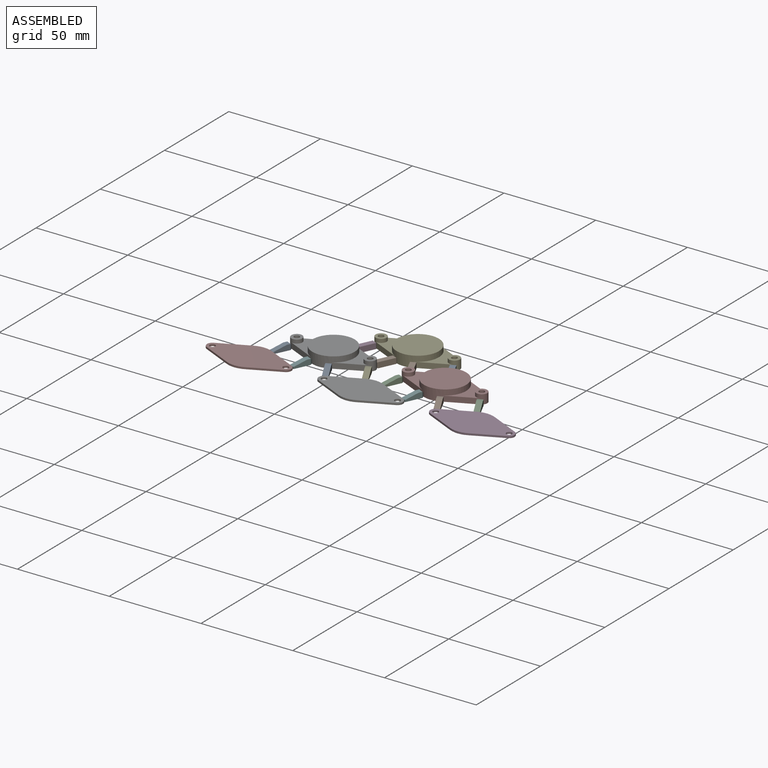
[diagram: assembled view]
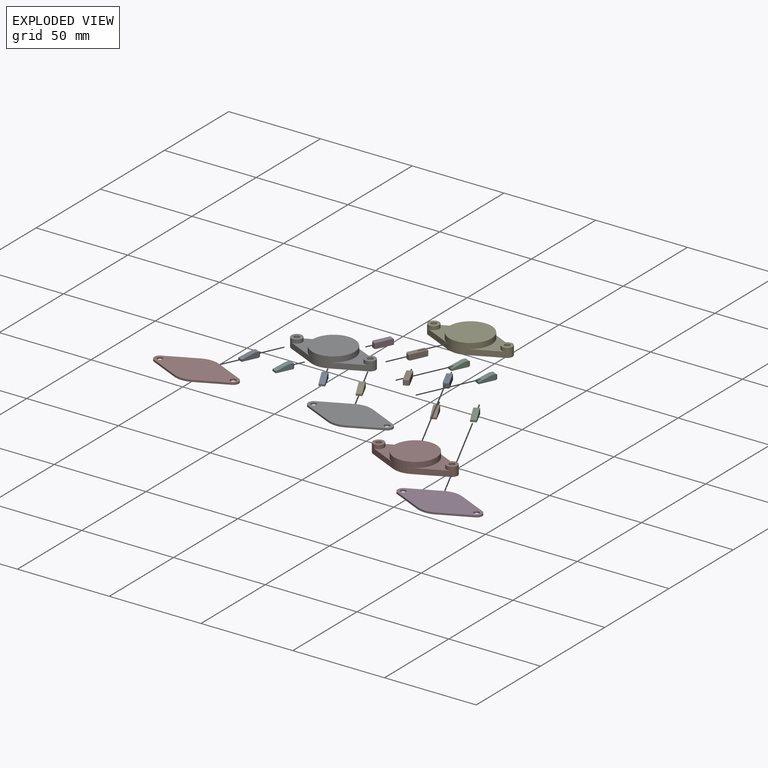
[diagram: exploded view]
GUIDED TOUR — MATED ASSEMBLY (Onshape document 7ce95cc0ff4ac9dc0271fdcf, AutoMate assembly 7ce95cc0ff4ac9dc0271fdcf_554a8d9334748388f44639b5_546659d703ddb0005e735c72_default)

This assembly has 18 components, labeled P0..P17 below (a component is one placed occurrence of a part; the same part can appear more than once), held together by 17 mates. A mate is a constraint between two components; its type names the relative motion it leaves free:
  FASTENED — locks the two components together rigidly (no relative motion).
Axis/direction vectors are unit vectors and 'through' points are millimeter coordinates, both in the assembly's world frame.

MATES
  1. FASTENED "Fastened 8": P0 <-> P14, direction (-0.425, 0.905, 0.000) through (-54.29, -1.36, 0.00) mm
  2. FASTENED "Fastened 14": P1 <-> P3, direction (0.425, -0.905, 0.000) through (10.79, -10.41, 0.00) mm
  3. FASTENED "Fastened 10": P12 <-> P14, direction (-0.425, 0.905, 0.000) through (-37.90, 6.33, 0.00) mm
  4. FASTENED "Fastened 5": P16 <-> P14, direction (0.425, 0.905, 0.000) through (-80.45, 6.33, 0.00) mm
  5. FASTENED "Fastened 6": P16 <-> P7, direction (-0.425, -0.905, 0.000) through (-84.70, -2.72, 0.00) mm
  6. FASTENED "Fastened 2": P8 <-> P4, direction (-0.425, 0.905, 0.000) through (-7.49, 28.51, 0.00) mm
  7. FASTENED "Fastened 1": P8 <-> P15, direction (0.425, -0.905, 0.000) through (-3.24, 19.46, 0.00) mm
  8. FASTENED "Fastened 4": P11 <-> P4, direction (0.425, 0.905, 0.000) through (-50.04, 28.51, 0.00) mm
  9. FASTENED "Fastened 7": P13 <-> P14, direction (0.425, 0.905, 0.000) through (-64.06, -1.36, 0.00) mm
  10. FASTENED "Fastened 11": P10 <-> P15, direction (0.425, 0.905, 0.000) through (-19.63, 6.33, 0.00) mm
  11. FASTENED "Fastened 13": P1 <-> P15, direction (-0.425, 0.905, 0.000) through (6.54, -1.36, 0.00) mm
  12. FASTENED "Fastened 15": P2 <-> P15, direction (-0.425, 0.905, 0.000) through (22.92, 6.33, 0.00) mm
  13. FASTENED "Fastened 12": P5 <-> P15, direction (0.425, 0.905, 0.000) through (-3.24, -1.36, 0.00) mm
  14. FASTENED "Fastened 16": P9 <-> P4, direction (0.425, 0.905, 0.000) through (-33.65, 20.81, 0.00) mm
  15. FASTENED "Fastened 17": P17 <-> P4, direction (-0.425, 0.905, 0.000) through (-23.88, 20.81, 0.00) mm
  16. FASTENED "Fastened 9": P0 <-> P6, direction (0.425, -0.905, 0.000) through (-50.04, -10.41, 0.00) mm
  17. FASTENED "Fastened 3": P11 <-> P14, direction (-0.425, -0.905, 0.000) through (-54.29, 19.46, 0.00) mm

ASSEMBLY ORDER
  1. P17 — the base component [order verified]
  2. P9 [order verified]
  3. P8 [order verified]
  4. P11 [order verified]
  5. P12 [order verified]
  6. P0 [order verified]
  7. P10 [order verified]
  8. P14 [order verified]
  9. P4 [order verified]
  10. P5 [order verified]
  11. P13 [order verified]
  12. P15 [order verified]
  13. P6 [order verified]
  14. P1 [order verified]
  15. P16 [order verified]
  16. P2 [order verified]
  17. P7 [order verified]
  18. P3 [order verified]
Order-tag legend:
  [order verified] — this step's position reverses a verified removal order: the component was checked to insert without passing through the ones already placed.

Of the 18 components, 15 carry the full construction recipe — the FeatureScript program that regenerates the part's solid from scratch; the rest are supplied as boundary geometry only.
Because this assembly has more than 12 components, the tour below covers the 12 most significant ones individually (every recipe-attached component first, then the largest by part volume), in assembly order; the remaining 6 are summarized together in a grouped section at the end.
Each toured component is shown spotlighted twice — in the assembled view, then in the exploded view, where a leader line traces a displaced component back to its assembled socket (saturated green if recipe-attached, orange if geometry-only; every other component desaturated gray) — followed by its recipe or geometry summary and the mates that hold it.
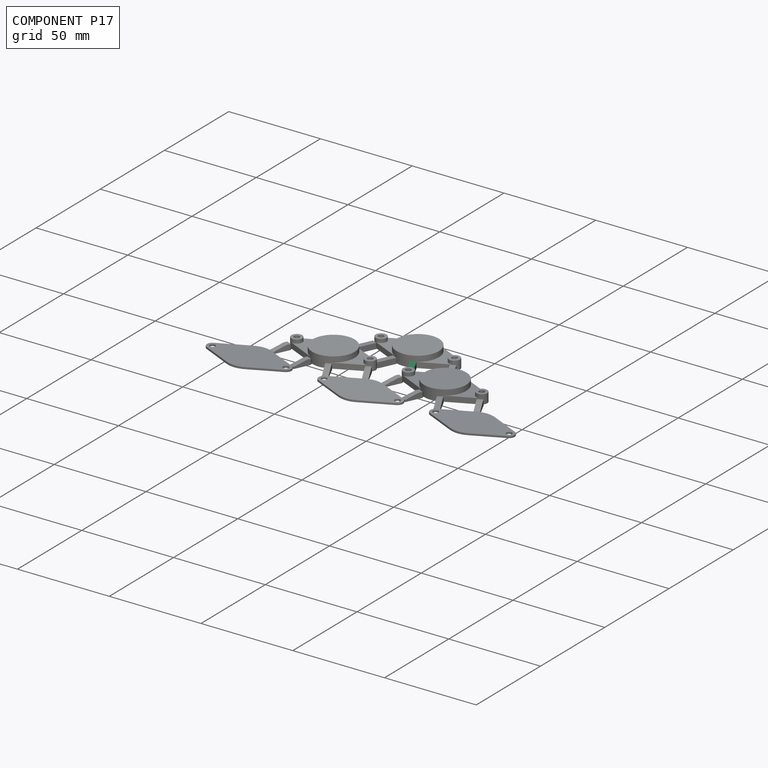
[diagram: component P17 — assembled]
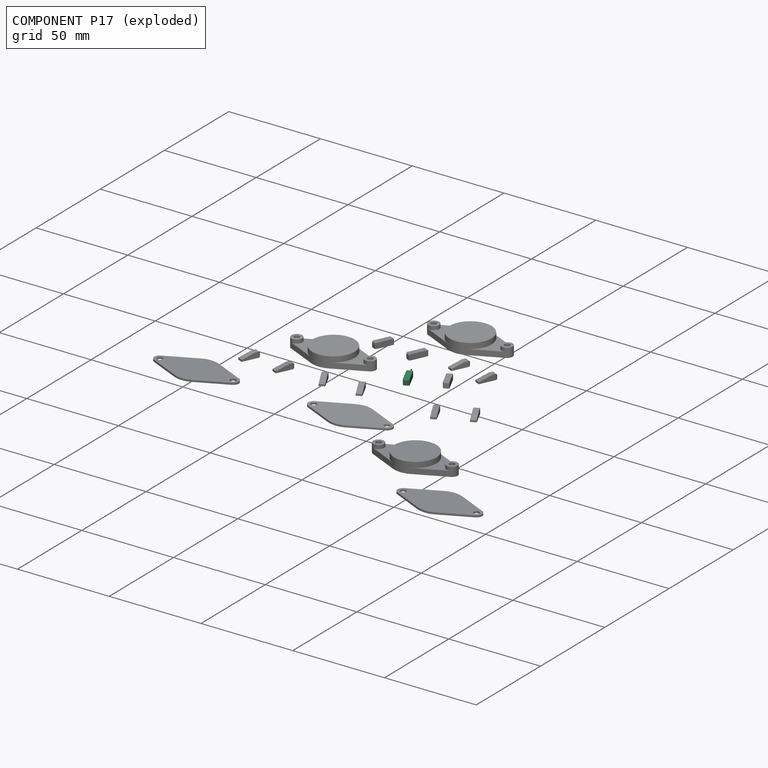
[diagram: component P17 — exploded]
COMPONENT P17 — same part as P8 (CADFS 00129856); its construction recipe is shown at P8.
Held by: FASTENED mate "Fastened 17" to P4.
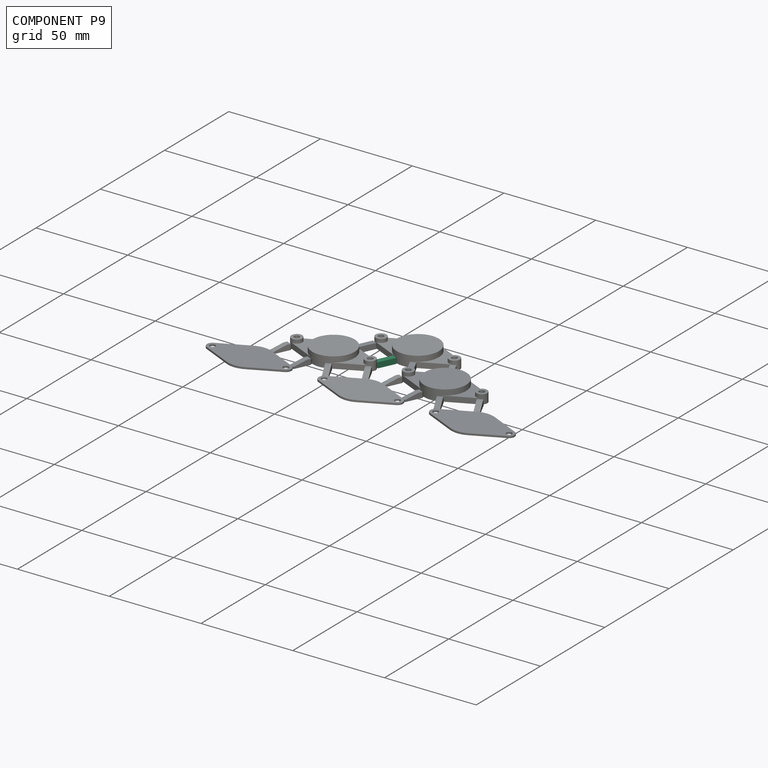
[diagram: component P9 — assembled]
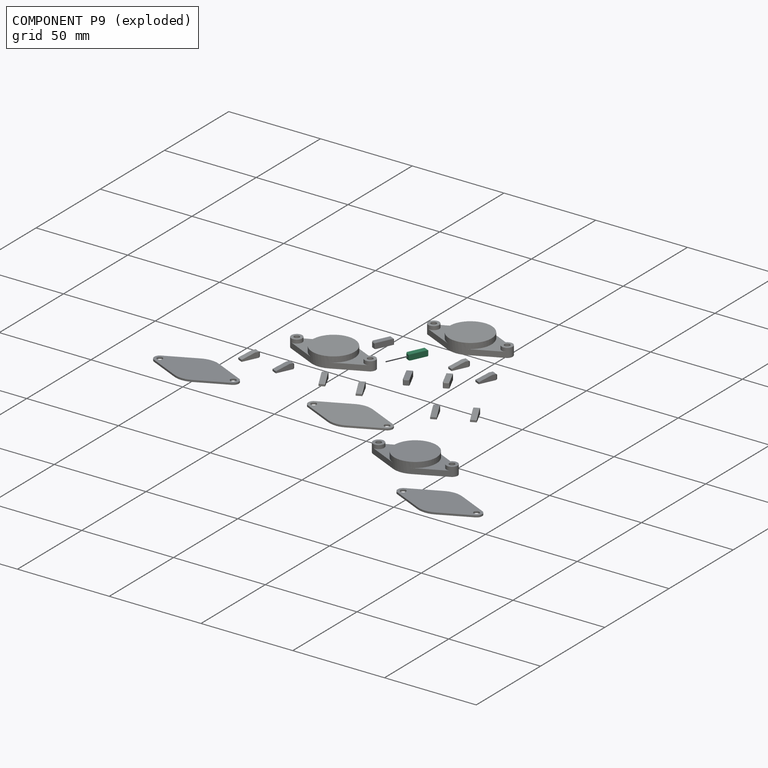
[diagram: component P9 — exploded]
COMPONENT P9 — same part as P8 (CADFS 00129856); its construction recipe is shown at P8.
Held by: FASTENED mate "Fastened 16" to P4.
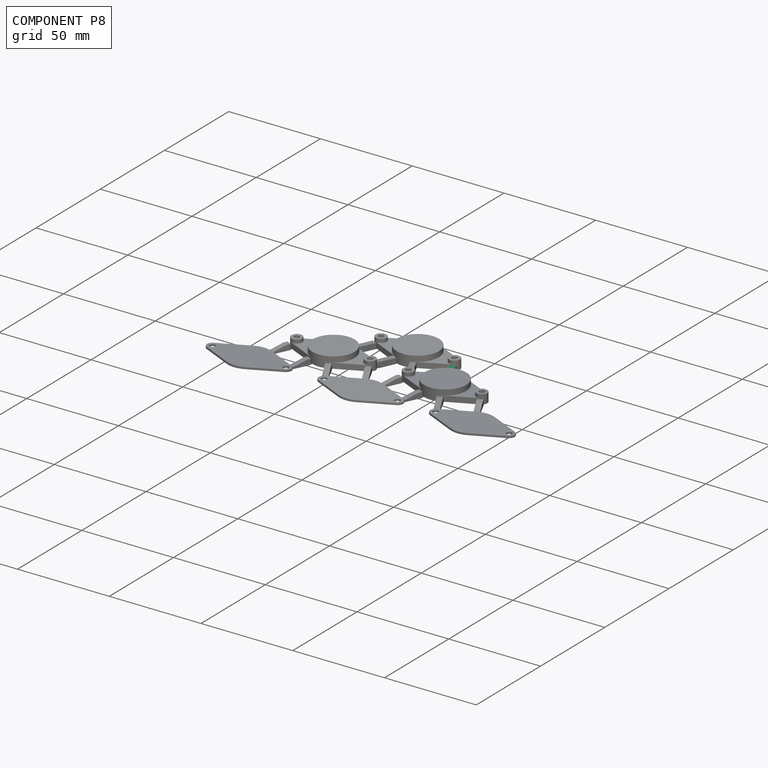
[diagram: component P8 — assembled]
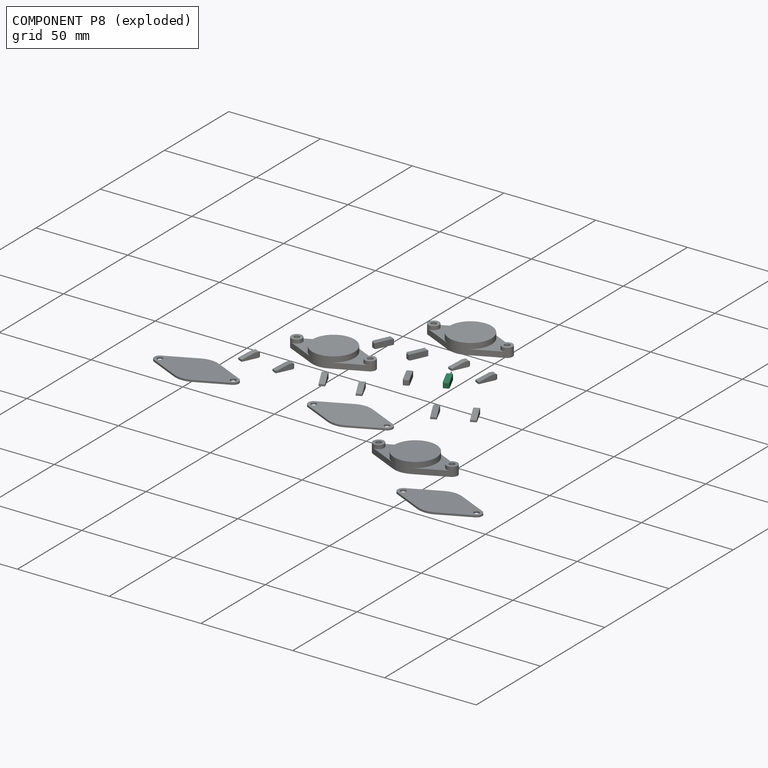
[diagram: component P8 — exploded]
COMPONENT P8 — recipe-attached (CADFS 00129856, mesh-verified: the recipe's output STEP matches this component's geometry to below the mesh-comparison resolution (tessellation chordal tolerance ~0.0163 mm)).
Held by: FASTENED mate "Fastened 2" to P4; FASTENED mate "Fastened 1" to P15.
Construction recipe (FeatureScript — the CAD program that rebuilds this solid; sketch coordinates are in the units given by the * unit suffixes, e.g. mm):

FeatureScript 1511;
import(path : "onshape/std/geometry.fs", version : "1511.0");
import(path : "onshape/std/common.fs", version : "1511.0");
const mm = millimeter;
const VERTEX = EntityType.VERTEX;
const EDGE = EntityType.EDGE;
const FACE = EntityType.FACE;
const BODY = EntityType.BODY;
function v(x, y){return vector(x, y);}
function OD(order){return orderDisambiguation(order);}
function OSD(set){return originalSetDisambiguation(set);}
function TD(topology){return topologyDisambiguation(topology);}
function TDD(query){return trueDependencyDisambiguation(query);}
function sQuery(a, b, c) {return sketchEntityQuery(a, b, c);}

annotation { "Feature Type Name" : "Feature", "Feature Type Description" : "" }
export const myFeature = defineFeature(function(context is Context, id is Id, definition is map)
    precondition{}
    {
        {
            var Q0;
            Q0=qCreatedBy(makeId("Top.planeOp"),FACE);
            var sketch = newSketch(context, id + "F0", { "sketchPlane" : qUnion([Q0])});
            skLineSegment(sketch, "E0.bottom", {"start": v(5, -1.5) * mm, "end": v(-5, -1.5) * mm});
            skLineSegment(sketch, "E0.top", {"start": v(5, 1.5) * mm, "end": v(-5, 1.5) * mm});
            skLineSegment(sketch, "E0.left", {"start": v(5, -1.5) * mm, "end": v(5, 1.5) * mm});
            skLineSegment(sketch, "E0.right", {"start": v(-5, -1.5) * mm, "end": v(-5, 1.5) * mm});
            skPoint(sketch, "E0.middle", {"position": v(0, 0) * mm});
            skSolve(sketch);
        }
        {
            var Q0;
            Q0 = qSketchRegion(id + "F0", true);
            var Q1;
            Q1=makeQuery(id+"F0.imprint","IMPRINT",FACE,{"disambiguationData":[TD([[makeQuery(id+"F0.imprint","IMPRINT",EDGE,{"derivedFrom":sQuery(id+"F0.wireOp",EDGE,"E0.bottom")}),-1.0]])]});
            extrude(context, id + "F1", {"entities" : qUnion([Q0, Q1]), "depth" : 3 * mm});
        }
        {
            var Q0;
            Q0=makeQuery(id+"F1.opExtrude","CAP_EDGE",EDGE,{"disambiguationData":[OSD([sQuery(id+"F0.wireOp",EDGE,"E0.right")])],"isStart":false});
            var Q1;
            Q1=makeQuery(id+"F1.opExtrude","CAP_EDGE",EDGE,{"disambiguationData":[OSD([sQuery(id+"F0.wireOp",EDGE,"E0.left")])],"isStart":false});
            chamfer(context, id + "F2", {"entities" : qUnion([Q0, Q1]), "width" : 0.4 * mm, "tangentPropagation" : true});
        }
        {
            var Q0;
            Q0=makeQuery(id+"F1.opExtrude","SWEPT_EDGE",EDGE,{"disambiguationData":[OSD([sQuery(id+"F0.wireOp",EDGE,"E0.bottom"),sQuery(id+"F0.wireOp",EDGE,"E0.left")])]});
            var Q1;
            Q1=makeQuery(id+"F1.opExtrude","SWEPT_EDGE",EDGE,{"disambiguationData":[OSD([sQuery(id+"F0.wireOp",EDGE,"E0.top"),sQuery(id+"F0.wireOp",EDGE,"E0.left")])]});
            var Q2;
            Q2=makeQuery(id+"F1.opExtrude","SWEPT_EDGE",EDGE,{"disambiguationData":[OSD([sQuery(id+"F0.wireOp",EDGE,"E0.bottom"),sQuery(id+"F0.wireOp",EDGE,"E0.right")])]});
            var Q3;
            Q3=makeQuery(id+"F1.opExtrude","SWEPT_EDGE",EDGE,{"disambiguationData":[OSD([sQuery(id+"F0.wireOp",EDGE,"E0.top"),sQuery(id+"F0.wireOp",EDGE,"E0.right")])]});
            chamfer(context, id + "F3", {"entities" : qUnion([Q0, Q1, Q2, Q3]), "width" : 0.4 * mm, "tangentPropagation" : true});
        }
    });
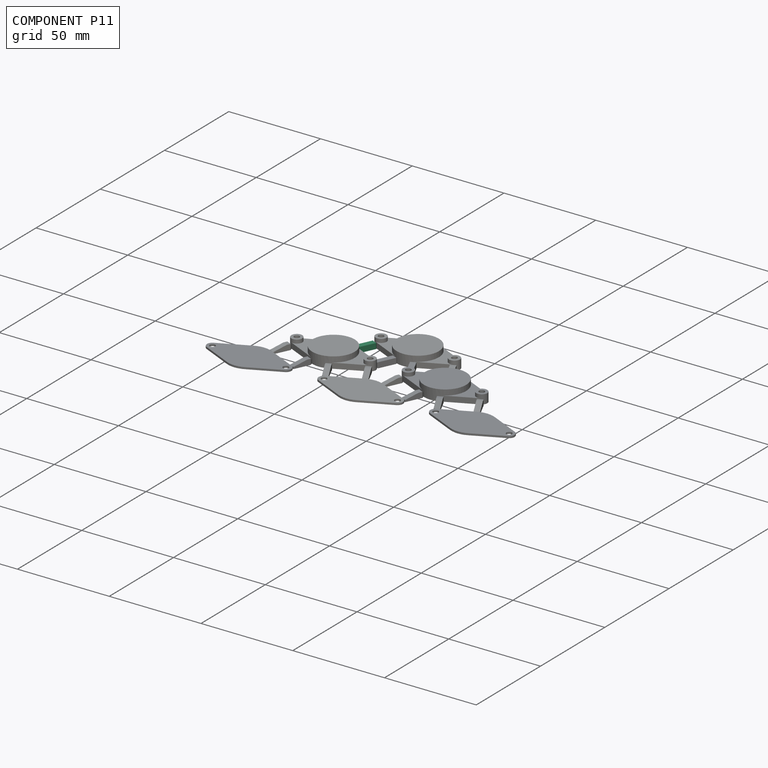
[diagram: component P11 — assembled]
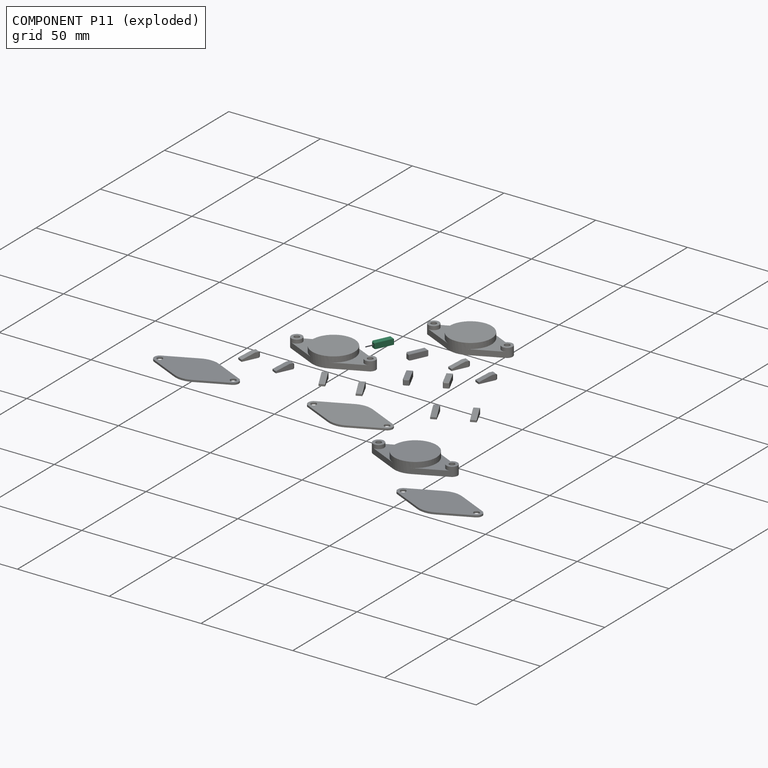
[diagram: component P11 — exploded]
COMPONENT P11 — same part as P8 (CADFS 00129856); its construction recipe is shown at P8.
Held by: FASTENED mate "Fastened 4" to P4; FASTENED mate "Fastened 3" to P14.
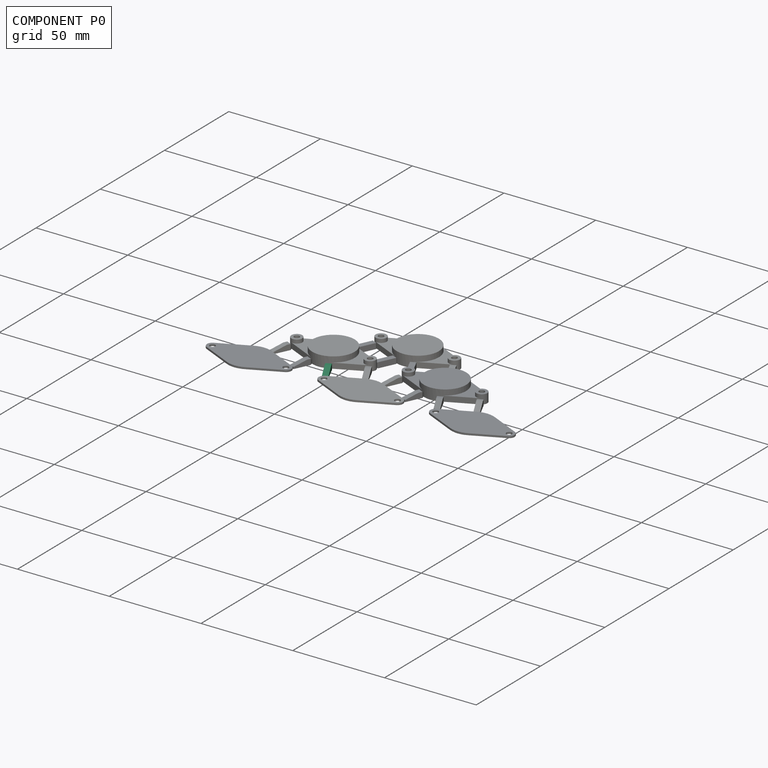
[diagram: component P0 — assembled]
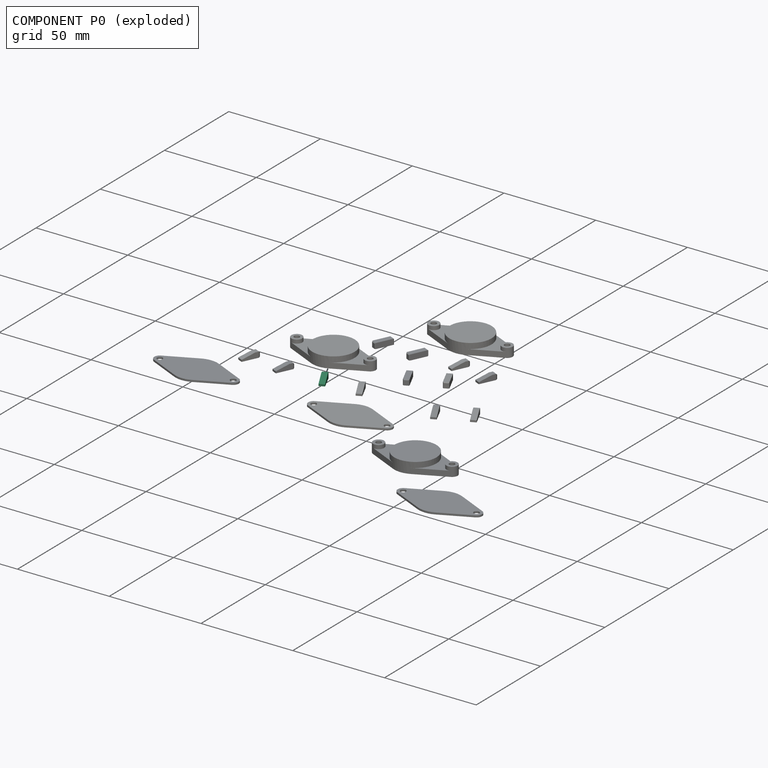
[diagram: component P0 — exploded]
COMPONENT P0 — recipe-attached (CADFS 00129857, mesh-verified: the recipe's output STEP matches this component's geometry to below the mesh-comparison resolution (tessellation chordal tolerance ~0.0163 mm)).
Held by: FASTENED mate "Fastened 8" to P14; FASTENED mate "Fastened 9" to P6.
Construction recipe (FeatureScript — the CAD program that rebuilds this solid; sketch coordinates are in the units given by the * unit suffixes, e.g. mm):

FeatureScript 1511;
import(path : "onshape/std/geometry.fs", version : "1511.0");
import(path : "onshape/std/common.fs", version : "1511.0");
const mm = millimeter;
const VERTEX = EntityType.VERTEX;
const EDGE = EntityType.EDGE;
const FACE = EntityType.FACE;
const BODY = EntityType.BODY;
function v(x, y){return vector(x, y);}
function OD(order){return orderDisambiguation(order);}
function OSD(set){return originalSetDisambiguation(set);}
function TD(topology){return topologyDisambiguation(topology);}
function TDD(query){return trueDependencyDisambiguation(query);}
function sQuery(a, b, c) {return sketchEntityQuery(a, b, c);}

annotation { "Feature Type Name" : "Feature", "Feature Type Description" : "" }
export const myFeature = defineFeature(function(context is Context, id is Id, definition is map)
    precondition{}
    {
        {
            var Q0;
            Q0=qCreatedBy(makeId("Top.planeOp"),FACE);
            var sketch = newSketch(context, id + "F0", { "sketchPlane" : qUnion([Q0])});
            skLineSegment(sketch, "E0.bottom", {"start": v(5, -1.5) * mm, "end": v(-5, -1.5) * mm});
            skLineSegment(sketch, "E0.top", {"start": v(5, 1.5) * mm, "end": v(-5, 1.5) * mm});
            skLineSegment(sketch, "E0.left", {"start": v(5, -1.5) * mm, "end": v(5, 1.5) * mm});
            skLineSegment(sketch, "E0.right", {"start": v(-5, -1.5) * mm, "end": v(-5, 1.5) * mm});
            skPoint(sketch, "E0.middle", {"position": v(0, 0) * mm});
            skSolve(sketch);
        }
        {
            var Q0;
            Q0=qSketchRegion(id+"F0",true);
            var Q1;
            Q1=makeQuery(id+"F0.imprint","IMPRINT",FACE,{"disambiguationData":[TD([[makeQuery(id+"F0.imprint","IMPRINT",EDGE,{"derivedFrom":sQuery(id+"F0.wireOp",EDGE,"E0.bottom")}),-1.0]])]});
            extrude(context, id + "F1", {"entities" : qUnion([Q0, Q1]), "depth" : 3 * mm});
        }
        {
            var Q0;
            Q0=makeQuery(id+"F1.opExtrude","SWEPT_FACE",FACE,{"disambiguationData":[OSD([sQuery(id+"F0.wireOp",EDGE,"E0.bottom")])]});
            var sketch = newSketch(context, id + "F2", { "sketchPlane" : qUnion([Q0])});
            skPoint(sketch, "E1", {"position": v(-5, 1) * mm});
            skPoint(sketch, "E2", {"position": v(2, 3) * mm});
            skLineSegment(sketch, "E3", {"start": v(-5, 1) * mm, "end": v(2, 3) * mm});
            skLineSegment(sketch, "E4", {"start": v(-5, 1) * mm, "end": v(-5, 3) * mm});
            skLineSegment(sketch, "E5", {"start": v(-5, 3) * mm, "end": v(2, 3) * mm});
            skSolve(sketch);
        }
        {
            var Q0;
            Q0 = qSketchRegion(id + "F2", true);
            extrude(context, id + "F3", {"entities" : qUnion([Q0]), "operationType" : NewBodyOperationType.REMOVE, "oppositeDirection" : true, "depth" : 25 * mm});
        }
        {
            var Q0;
            Q0=makeQuery(id+"F1.opExtrude","CAP_EDGE",EDGE,{"disambiguationData":[OSD([sQuery(id+"F0.wireOp",EDGE,"E0.left")])],"isStart":false});
            var Q1;
            Q1=makeQuery(id+"F1.opExtrude","SWEPT_EDGE",EDGE,{"disambiguationData":[OSD([sQuery(id+"F0.wireOp",EDGE,"E0.bottom"),sQuery(id+"F0.wireOp",EDGE,"E0.left")])]});
            var Q2;
            Q2=makeQuery(id+"F1.opExtrude","SWEPT_EDGE",EDGE,{"disambiguationData":[OSD([sQuery(id+"F0.wireOp",EDGE,"E0.top"),sQuery(id+"F0.wireOp",EDGE,"E0.left")])]});
            chamfer(context, id + "F4", {"entities" : qUnion([Q0, Q1, Q2]), "width" : 1 * mm, "tangentPropagation" : true});
        }
    });
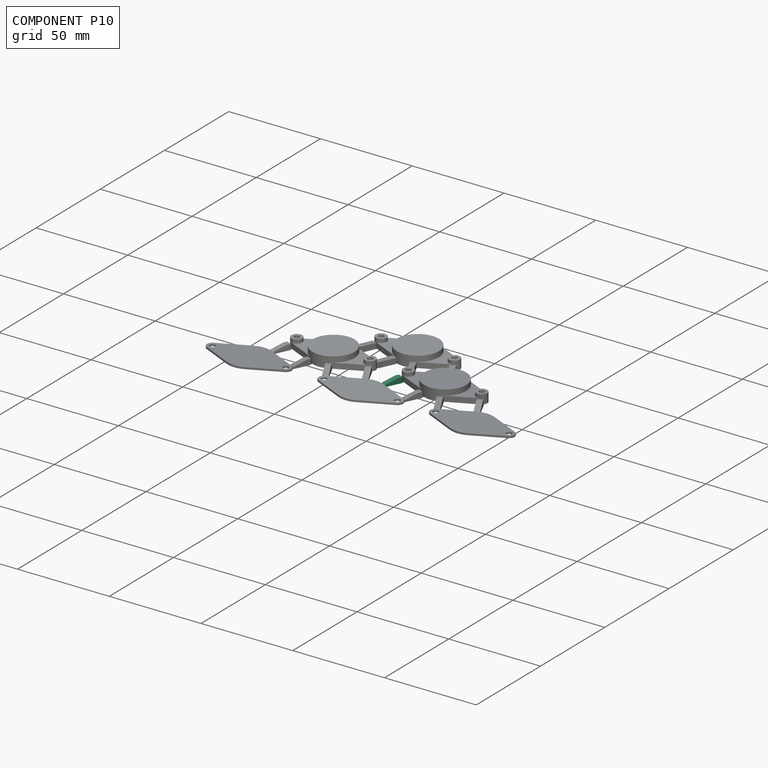
[diagram: component P10 — assembled]
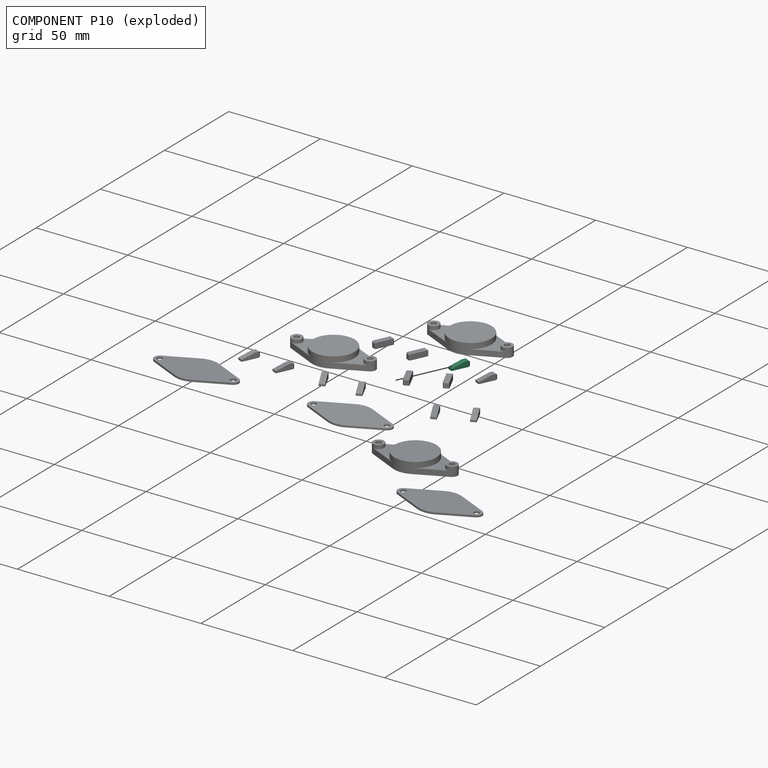
[diagram: component P10 — exploded]
COMPONENT P10 — same part as P0 (CADFS 00129857); its construction recipe is shown at P0.
Held by: FASTENED mate "Fastened 11" to P15.
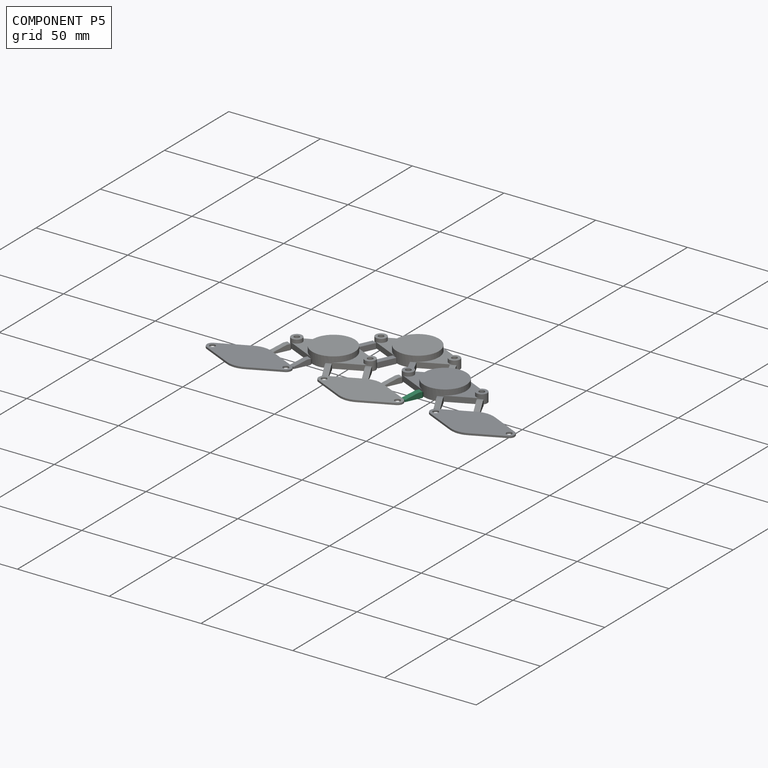
[diagram: component P5 — assembled]
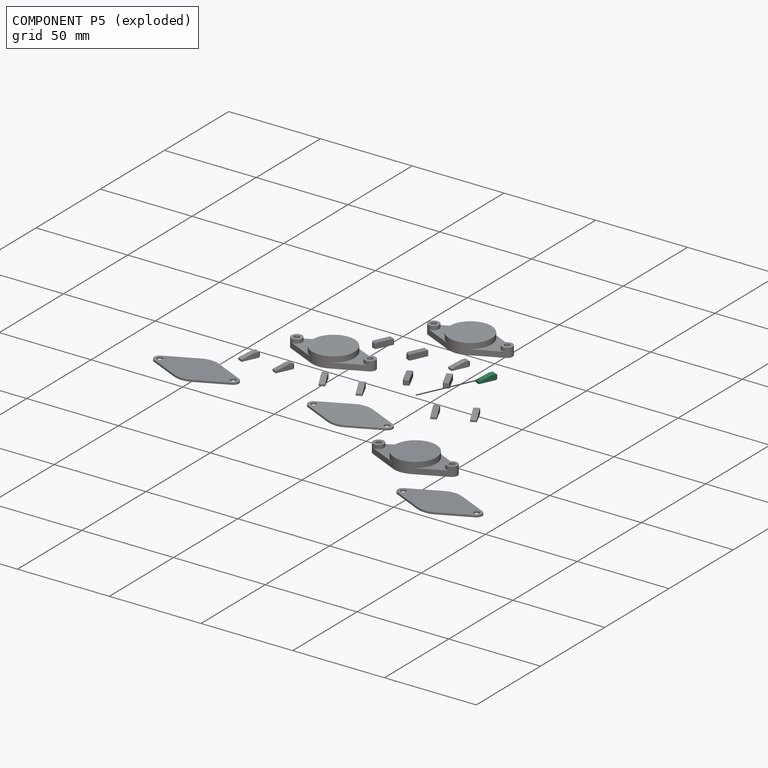
[diagram: component P5 — exploded]
COMPONENT P5 — same part as P0 (CADFS 00129857); its construction recipe is shown at P0.
Held by: FASTENED mate "Fastened 12" to P15.
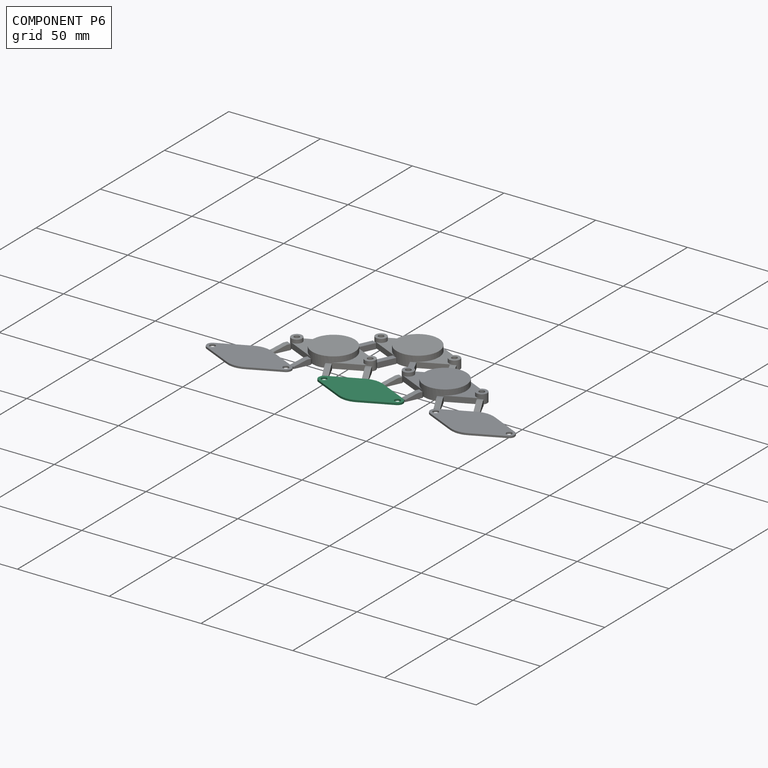
[diagram: component P6 — assembled]
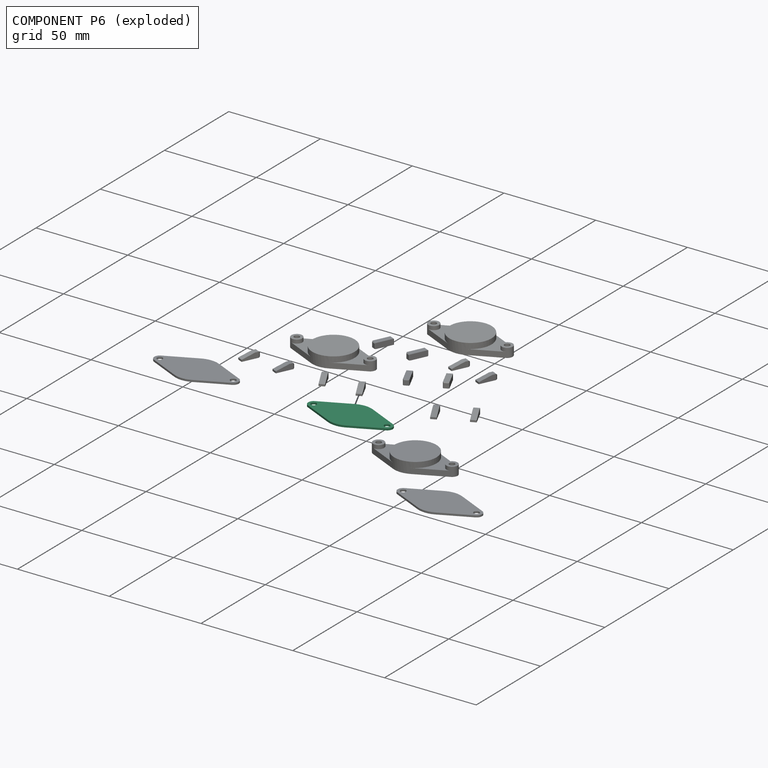
[diagram: component P6 — exploded]
COMPONENT P6 — same part as P3 (CADFS 00129858); its construction recipe is shown at P3.
Held by: FASTENED mate "Fastened 9" to P0.
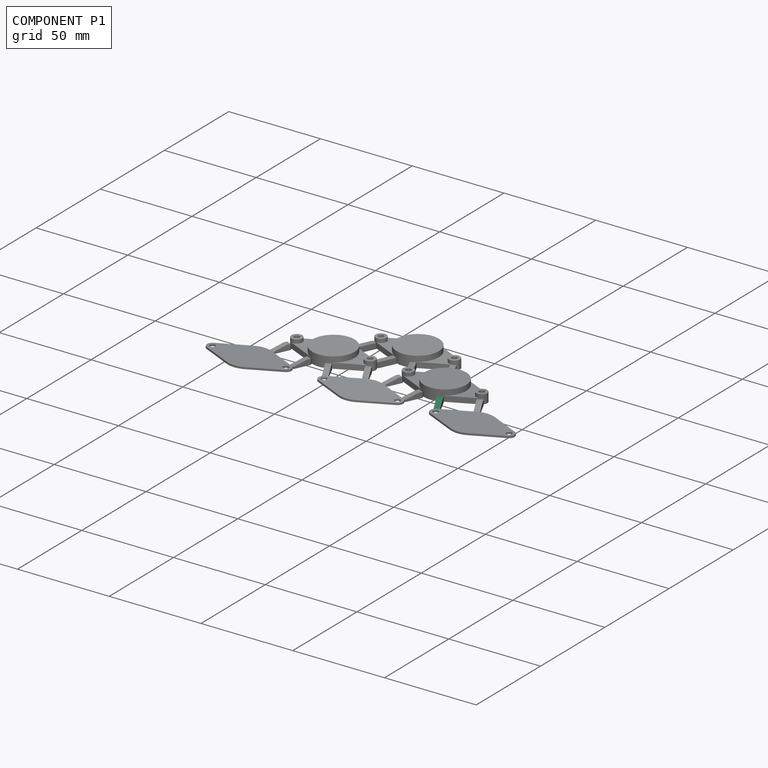
[diagram: component P1 — assembled]
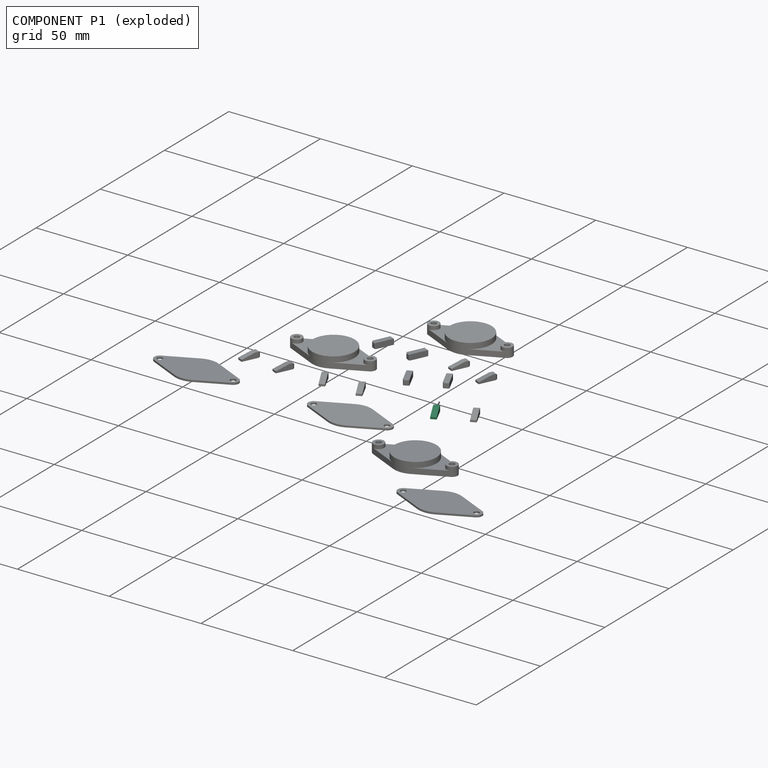
[diagram: component P1 — exploded]
COMPONENT P1 — same part as P0 (CADFS 00129857); its construction recipe is shown at P0.
Held by: FASTENED mate "Fastened 14" to P3; FASTENED mate "Fastened 13" to P15.
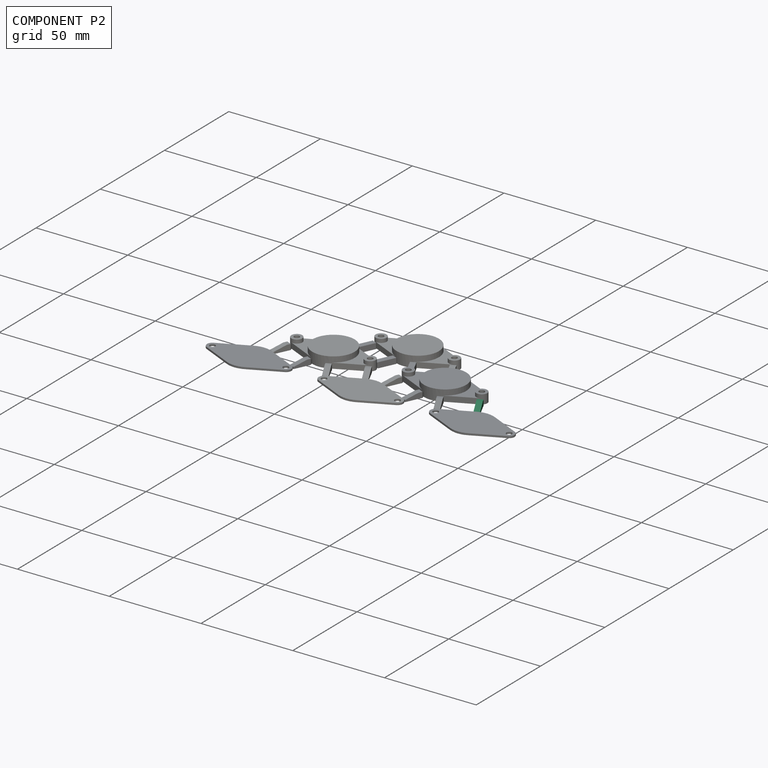
[diagram: component P2 — assembled]
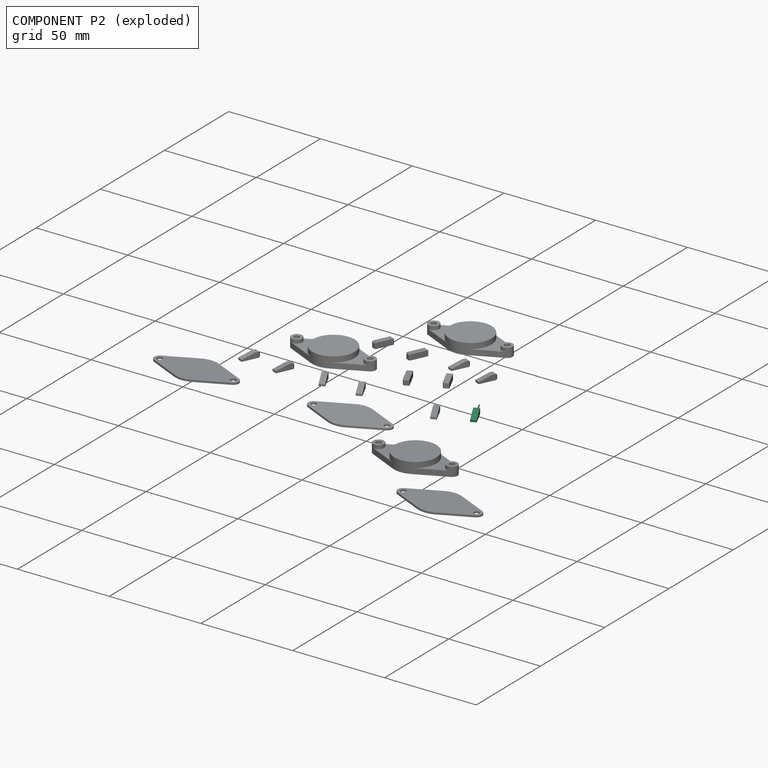
[diagram: component P2 — exploded]
COMPONENT P2 — same part as P0 (CADFS 00129857); its construction recipe is shown at P0.
Held by: FASTENED mate "Fastened 15" to P15.
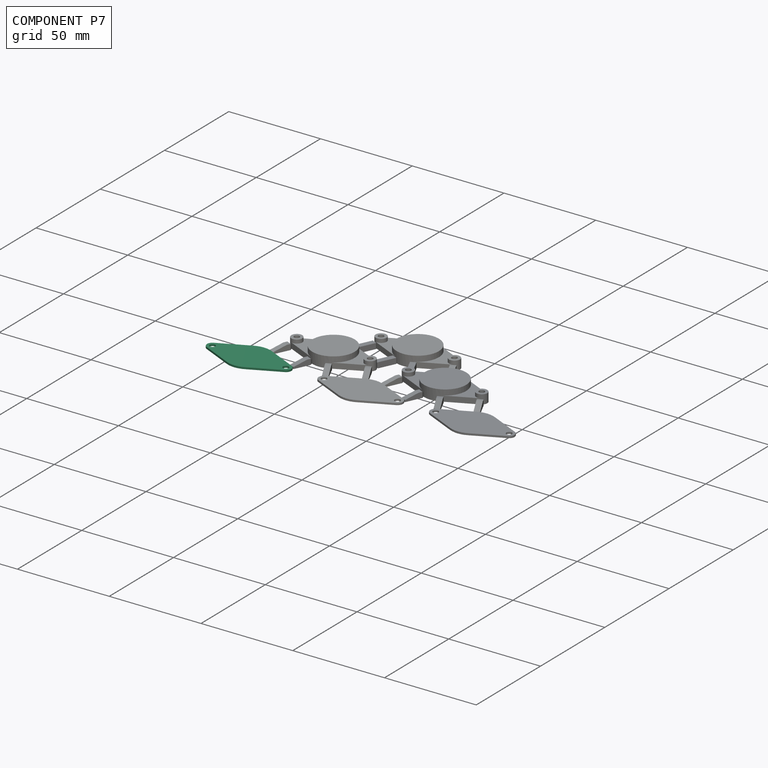
[diagram: component P7 — assembled]
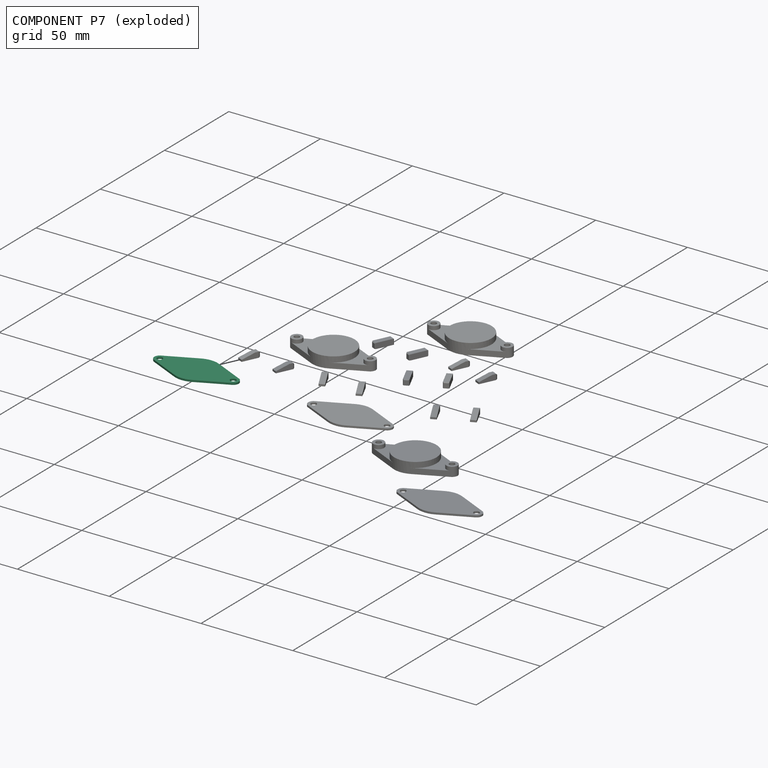
[diagram: component P7 — exploded]
COMPONENT P7 — same part as P3 (CADFS 00129858); its construction recipe is shown at P3.
Held by: FASTENED mate "Fastened 6" to P16.
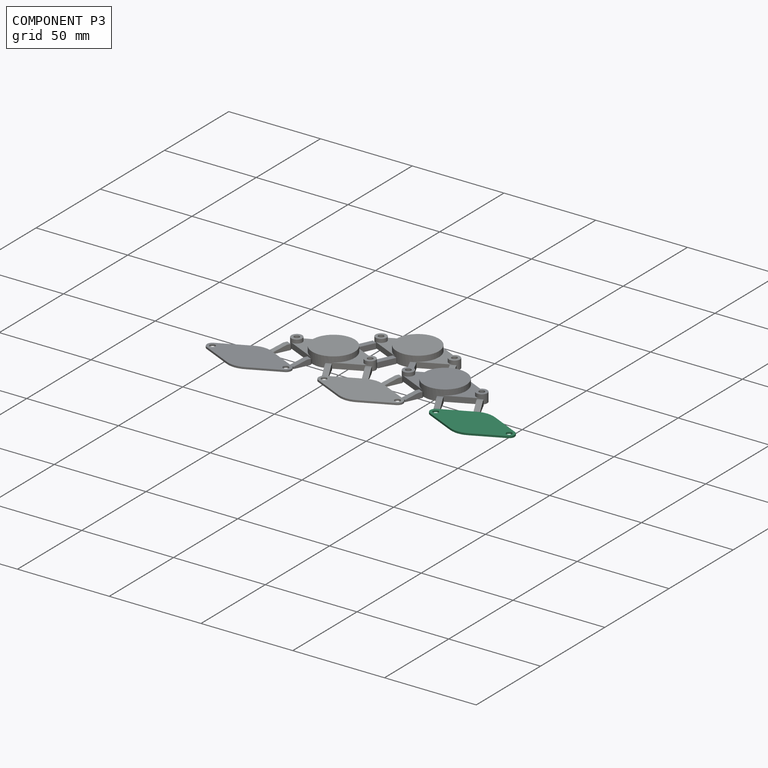
[diagram: component P3 — assembled]
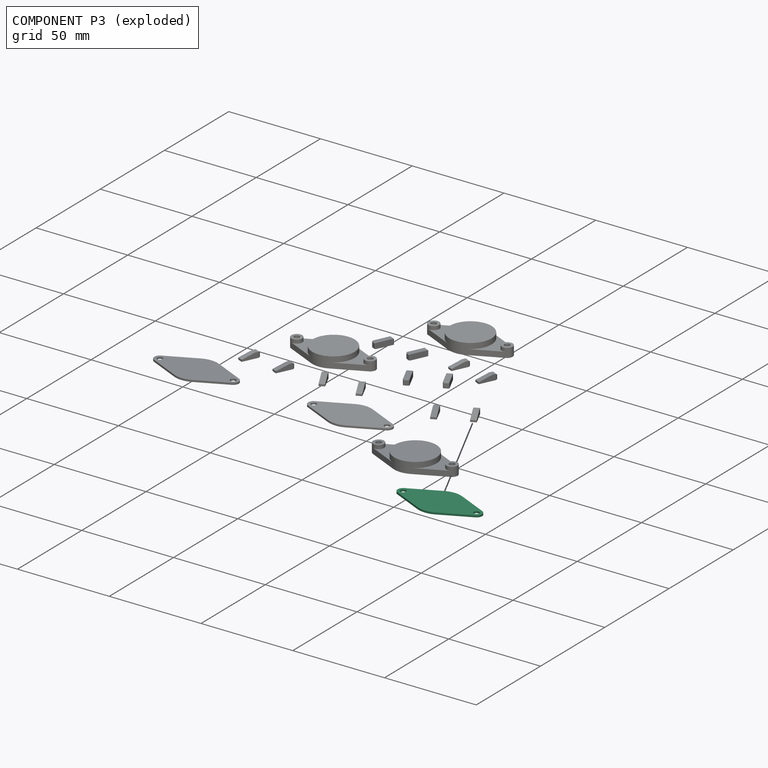
[diagram: component P3 — exploded]
COMPONENT P3 — recipe-attached (CADFS 00129858, mesh-verified: the recipe's output STEP matches this component's geometry to below the mesh-comparison resolution (tessellation chordal tolerance ~0.0772 mm)).
Held by: FASTENED mate "Fastened 14" to P1.
Construction recipe (FeatureScript — the CAD program that rebuilds this solid; sketch coordinates are in the units given by the * unit suffixes, e.g. mm):

FeatureScript 1511;
import(path : "onshape/std/geometry.fs", version : "1511.0");
import(path : "onshape/std/common.fs", version : "1511.0");
const mm = millimeter;
const VERTEX = EntityType.VERTEX;
const EDGE = EntityType.EDGE;
const FACE = EntityType.FACE;
const BODY = EntityType.BODY;
function v(x, y){return vector(x, y);}
function OD(order){return orderDisambiguation(order);}
function OSD(set){return originalSetDisambiguation(set);}
function TD(topology){return topologyDisambiguation(topology);}
function TDD(query){return trueDependencyDisambiguation(query);}
function sQuery(a, b, c) {return sketchEntityQuery(a, b, c);}

annotation { "Feature Type Name" : "Feature", "Feature Type Description" : "" }
export const myFeature = defineFeature(function(context is Context, id is Id, definition is map)
    precondition{}
    {
        {
            var Q0;
            Q0=qCreatedBy(makeId("Top.planeOp"),FACE);
            var sketch = newSketch(context, id + "F0", { "sketchPlane" : qUnion([Q0])});
            skCircle(sketch, "E0", {"center": v(0.06, 0.01) * mm, "radius": 8.5 * mm});
            skCircle(sketch, "E1.0", {"center": v(0.06, 0.01) * mm, "radius": 11.5 * mm});
            skLineSegment(sketch, "E2", {"start": v(0.06, 0.01) * mm, "end": v(-19.94, 0.01) * mm, "construction": true});
            skLineSegment(sketch, "E3", {"start": v(0.06, 0.01) * mm, "end": v(20.06, 0.01) * mm, "construction": true});
            skCircle(sketch, "E4", {"center": v(-19.94, 0.01) * mm, "radius": 1.5 * mm});
            skCircle(sketch, "E5", {"center": v(-19.94, 0.01) * mm, "radius": 3 * mm});
            skCircle(sketch, "E6", {"center": v(20.06, 0.01) * mm, "radius": 1.5 * mm});
            skCircle(sketch, "E7", {"center": v(20.06, 0.01) * mm, "radius": 3 * mm});
            skLineSegment(sketch, "E8", {"start": v(-21.21, 2.73) * mm, "end": v(-4.83, 10.42) * mm});
            skLineSegment(sketch, "E9", {"start": v(21.34, 2.73) * mm, "end": v(4.95, 10.42) * mm});
            skLineSegment(sketch, "E10", {"start": v(-21.21, -2.7) * mm, "end": v(-4.83, -10.4) * mm});
            skLineSegment(sketch, "E11", {"start": v(21.34, -2.7) * mm, "end": v(4.95, -10.4) * mm});
            skSolve(sketch);
        }
        {
            var Q0;
            Q0=makeQuery(id+"F0.imprint","IMPRINT",FACE,{"disambiguationData":[TD([[makeQuery(id+"F0.imprint","IMPRINT",EDGE,{"derivedFrom":sQuery(id+"F0.wireOp",EDGE,"E4")}),-1.0]])]});
            var Q1;
            {var subQ0=sQuery(id+"F0.wireOp",EDGE,"E8");Q1=makeQuery(id+"F0.imprint","IMPRINT",FACE,{"disambiguationData":[TD([[makeQuery(id+"F0.imprint","IMPRINT",EDGE,{"derivedFrom":subQ0}),-1.0]])]});}
            var Q2;
            Q2=makeQuery(id+"F0.imprint","IMPRINT",FACE,{"disambiguationData":[TD([[makeQuery(id+"F0.imprint","IMPRINT",EDGE,{"derivedFrom":sQuery(id+"F0.wireOp",EDGE,"E0")}),-1.0]])]});
            var Q3;
            Q3=makeQuery(id+"F0.imprint","IMPRINT",FACE,{"disambiguationData":[TD([[makeQuery(id+"F0.imprint","IMPRINT",EDGE,{"derivedFrom":sQuery(id+"F0.wireOp",EDGE,"E0")}),1.0]])]});
            var Q4;
            {var subQ0=sQuery(id+"F0.wireOp",EDGE,"E9");Q4=makeQuery(id+"F0.imprint","IMPRINT",FACE,{"disambiguationData":[TD([[makeQuery(id+"F0.imprint","IMPRINT",EDGE,{"derivedFrom":subQ0}),1.0]])]});}
            var Q5;
            Q5=makeQuery(id+"F0.imprint","IMPRINT",FACE,{"disambiguationData":[TD([[makeQuery(id+"F0.imprint","IMPRINT",EDGE,{"derivedFrom":sQuery(id+"F0.wireOp",EDGE,"E6")}),-1.0]])]});
            var Q6;
            Q6=sQuery(id+"F0.wireOp",EDGE,"E0");
            var Q7;
            Q7=sQuery(id+"F0.wireOp",EDGE,"E1.0");
            var Q8;
            Q8=sQuery(id+"F0.wireOp",EDGE,"E4");
            var Q9;
            Q9=sQuery(id+"F0.wireOp",EDGE,"E5");
            var Q10;
            Q10=sQuery(id+"F0.wireOp",EDGE,"E6");
            var Q11;
            Q11=sQuery(id+"F0.wireOp",EDGE,"E7");
            var Q12;
            Q12=sQuery(id+"F0.wireOp",EDGE,"E8");
            var Q13;
            Q13=sQuery(id+"F0.wireOp",EDGE,"E9");
            var Q14;
            Q14=sQuery(id+"F0.wireOp",EDGE,"E10");
            var Q15;
            Q15=sQuery(id+"F0.wireOp",EDGE,"E11");
            extrude(context, id + "F1", {"entities" : qUnion([Q0, Q1, Q2, Q3, Q4, Q5]), "surfaceEntities" : qUnion([Q6, Q7, Q8, Q9, Q10, Q11, Q12, Q13, Q14, Q15]), "depth" : 1 * mm});
        }
    });
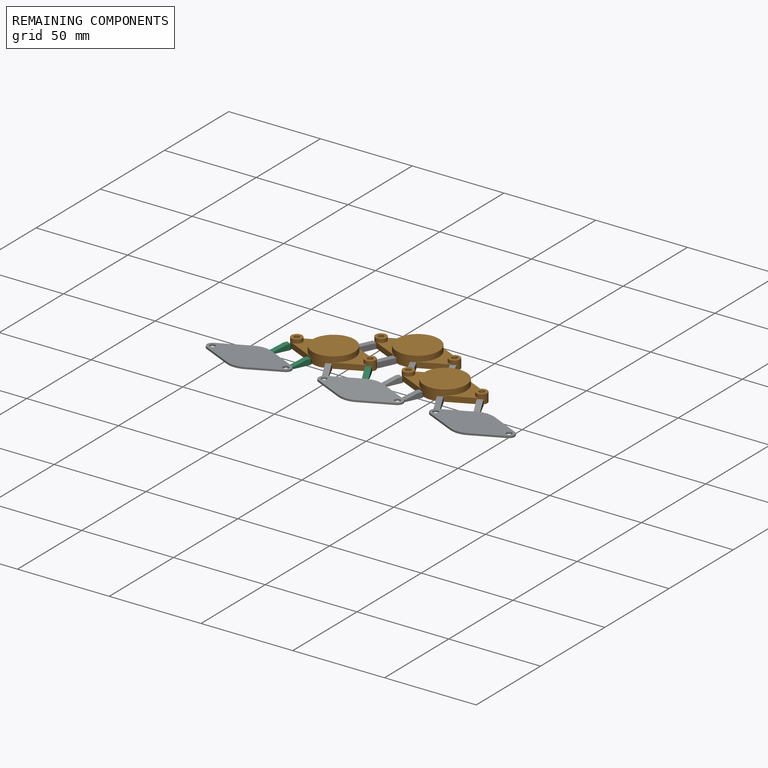
[diagram: remaining components — assembled]
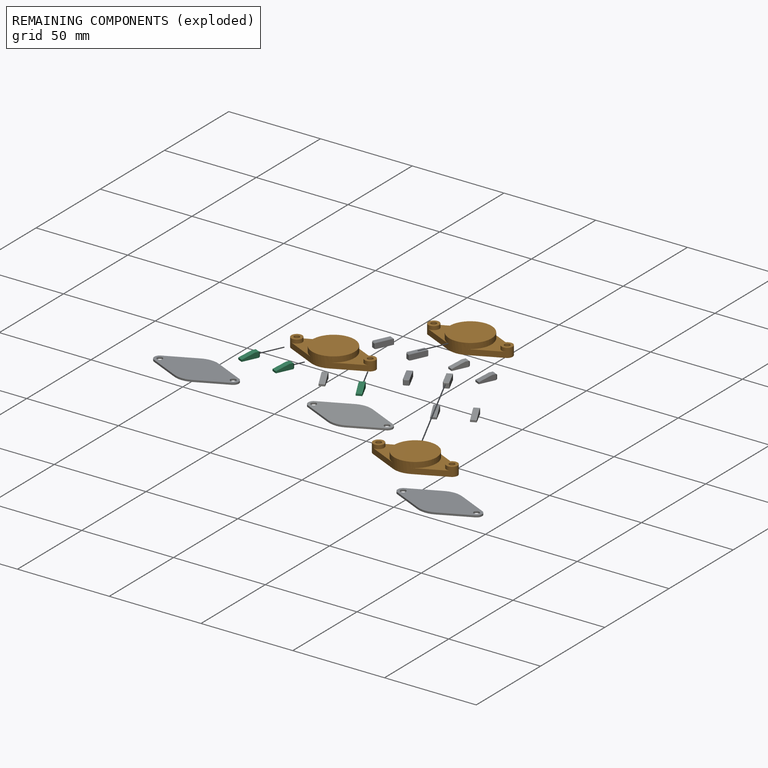
[diagram: remaining components — exploded]
REMAINING COMPONENTS (grouped) — the 6 components below fall outside the per-component tour by the significance rule stated above; both spotlight views highlight the whole group.
  P12: bounding box 10.0 x 3.0 x 3.0 mm, volume 65 mm^3. Recipe-attached (CADFS 00129857; recipe not printed under the significance rule). Held by: FASTENED mate "Fastened 10" to P14.
  P14: bounding box 46.0 x 23.0 x 6.0 mm, volume 2138 mm^3. Held by: FASTENED mate "Fastened 8" to P0; FASTENED mate "Fastened 10" to P12; FASTENED mate "Fastened 5" to P16; FASTENED mate "Fastened 7" to P13; FASTENED mate "Fastened 3" to P11.
  P4: bounding box 46.0 x 23.0 x 6.0 mm, volume 2138 mm^3. Held by: FASTENED mate "Fastened 2" to P8; FASTENED mate "Fastened 4" to P11; FASTENED mate "Fastened 16" to P9; FASTENED mate "Fastened 17" to P17.
  P13: bounding box 10.0 x 3.0 x 3.0 mm, volume 65 mm^3. Recipe-attached (CADFS 00129857; recipe not printed under the significance rule). Held by: FASTENED mate "Fastened 7" to P14.
  P15: bounding box 46.0 x 23.0 x 6.0 mm, volume 2138 mm^3. Held by: FASTENED mate "Fastened 1" to P8; FASTENED mate "Fastened 11" to P10; FASTENED mate "Fastened 13" to P1; FASTENED mate "Fastened 15" to P2; FASTENED mate "Fastened 12" to P5.
  P16: bounding box 10.0 x 3.0 x 3.0 mm, volume 65 mm^3. Recipe-attached (CADFS 00129857; recipe not printed under the significance rule). Held by: FASTENED mate "Fastened 5" to P14; FASTENED mate "Fastened 6" to P7.
PROVENANCE & LICENSES
Assembly (occurrences, transforms, mates, per-part STEP geometry): AutoMate dataset, Zenodo record 7776208, CC0.
Construction recipes: CADFS (HuggingFace VladPyatov/CADFS, CC-BY-4.0, layered over the ABC dataset), FeatureScript reconstruction programs keyed by ABC model id.
Join: ABC meta listings map ABC model id -> Onshape documentId; within a shared document, parts are matched by geometric signature (bounding-box dims + volume at 0.1% relative tolerance, exact B-rep face/solid counts).
Verification: 15 of this assembly's 18 components carry a recipe attachment, and every attachment is mesh-verified: the CADFS STEP and the AutoMate member STEP were compared as meshes in their shared local frame (symmetric sampled-point-to-mesh distance); worst across the 15 attachments: below the mesh-comparison resolution (tessellation chordal tolerance ~0.0772 mm) on a 51 mm part.
Renders: orthographic iso camera (az 35 / el 25); the floor grid conveys scale (grid pitch printed in each image; no ruler). In the exploded view each component is displaced by its stored offset vector: the offsets alone carry the explosion direction (mate normal/axis signs are not orientation cues and do not encode it), and separation distances are assigned per mate-chain, not proportionally to assembly-order depth.
